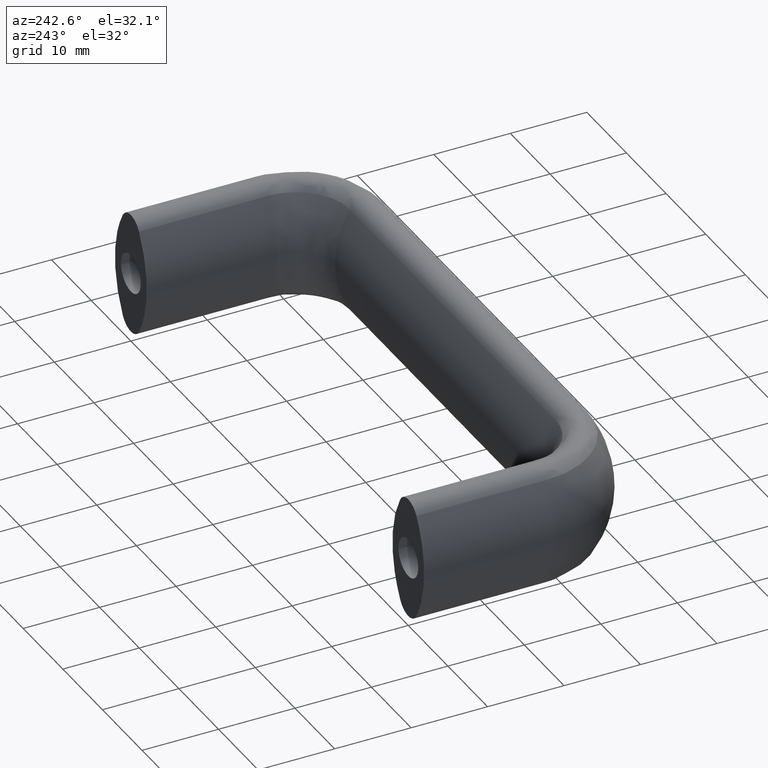
[diagram: clean part render]
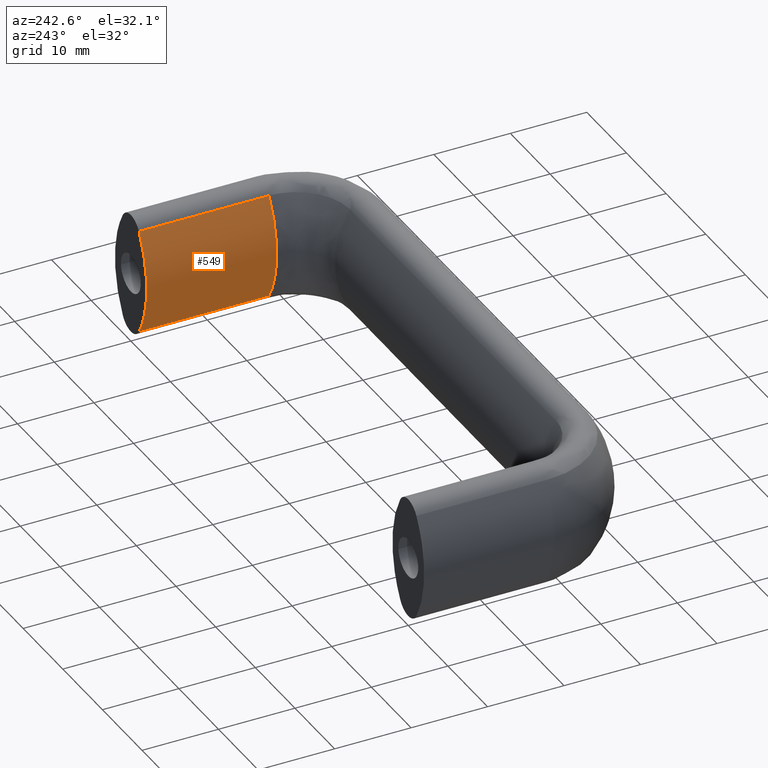
[diagram: same view with one face highlighted and labeled with its STEP entity id]
A machine part, auxiliary view. The second image highlights one B-rep face of the part: STEP entity #549.
In plain terms, the highlighted face is a freeform B-spline surface patch.
Its self-contained STEP definition (entity closure, byte-faithful):
#446=CARTESIAN_POINT('',(67.962264150943412,6.938894E-015,-6.867924528301880));
#447=VERTEX_POINT('',#446);
#472=CARTESIAN_POINT('',(67.962264150943412,-17.0,-6.867924528301880));
#473=VERTEX_POINT('',#472);
#489=CARTESIAN_POINT('',(67.962264150943412,-17.0,-6.867924528301880));
#490=CARTESIAN_POINT('',(67.962264150943412,6.938894E-015,-6.867924528301880));
#491=QUASI_UNIFORM_CURVE('',1,(#489,#490),.UNSPECIFIED.,.F.,.U.);
#492=EDGE_CURVE('',#473,#447,#491,.T.);
#497=CARTESIAN_POINT('',(68.145827812705008,-17.425000000000001,7.154505302853010));
#498=CARTESIAN_POINT('',(68.145827812705008,0.435625000000008,7.154505302853010));
#499=CARTESIAN_POINT('',(63.320053052136359,-17.424999999999997,-0.166726280751657));
#500=CARTESIAN_POINT('',(63.320053052136359,0.435625000000008,-0.166726280751657));
#501=CARTESIAN_POINT('',(68.300413728349923,-17.425000000000001,-7.383688347669938));
#502=CARTESIAN_POINT('',(68.300413728349923,0.435625000000008,-7.383688347669938));
#510=(BOUNDED_SURFACE()B_SPLINE_SURFACE(1,2,((#497,#499,#501),(#498,#500,#502)),.UNSPECIFIED.,.F.,.F.,.U.)B_SPLINE_SURFACE_WITH_KNOTS((2,2),(3,3),(0.0,17.860625000000010),(0.0,15.897995435850330),.UNSPECIFIED.)GEOMETRIC_REPRESENTATION_ITEM()RATIONAL_B_SPLINE_SURFACE(((1.0,0.829037572555042,1.0),(1.0,0.829037572555042,1.0)))REPRESENTATION_ITEM('')SURFACE());
#511=ORIENTED_EDGE('',*,*,#492,.F.);
#512=CARTESIAN_POINT('',(67.962264150943412,-17.0,6.867924528301880));
#513=VERTEX_POINT('',#512);
#514=CARTESIAN_POINT('',(67.962264150943412,-17.0,6.867924528301891));
#515=CARTESIAN_POINT('',(63.688888888888897,-16.999999999999996,3.469447E-015));
#516=CARTESIAN_POINT('',(67.962264150943398,-17.0,-6.867924528301887));
#524=(BOUNDED_CURVE()B_SPLINE_CURVE(2,(#514,#515,#516),.UNSPECIFIED.,.F.,.U.)CURVE()GEOMETRIC_REPRESENTATION_ITEM()QUASI_UNIFORM_CURVE()RATIONAL_B_SPLINE_CURVE((1.0,0.849056603773585,1.0))REPRESENTATION_ITEM(''));
#525=EDGE_CURVE('',#513,#473,#524,.T.);
#526=ORIENTED_EDGE('',*,*,#525,.F.);
#527=CARTESIAN_POINT('',(67.962264150943412,6.387821E-015,6.867924528301880));
#528=VERTEX_POINT('',#527);
#529=CARTESIAN_POINT('',(67.962264150943412,-17.0,6.867924528301880));
#530=CARTESIAN_POINT('',(67.962264150943412,6.387821E-015,6.867924528301880));
#531=QUASI_UNIFORM_CURVE('',1,(#529,#530),.UNSPECIFIED.,.F.,.U.);
#532=EDGE_CURVE('',#513,#528,#531,.T.);
#533=ORIENTED_EDGE('',*,*,#532,.T.);
#534=CARTESIAN_POINT('',(67.962264150943412,5.836748E-015,6.867924528301891));
#535=CARTESIAN_POINT('',(63.688888888888897,5.836748E-015,3.469447E-015));
#536=CARTESIAN_POINT('',(67.962264150943398,5.836748E-015,-6.867924528301887));
#544=(BOUNDED_CURVE()B_SPLINE_CURVE(2,(#534,#535,#536),.UNSPECIFIED.,.F.,.U.)CURVE()GEOMETRIC_REPRESENTATION_ITEM()QUASI_UNIFORM_CURVE()RATIONAL_B_SPLINE_CURVE((1.0,0.849056603773585,1.0))REPRESENTATION_ITEM(''));
#545=EDGE_CURVE('',#528,#447,#544,.T.);
#546=ORIENTED_EDGE('',*,*,#545,.T.);
#547=EDGE_LOOP('',(#511,#526,#533,#546));
#548=FACE_OUTER_BOUND('',#547,.T.);
#549=ADVANCED_FACE('',(#548),#510,.T.);